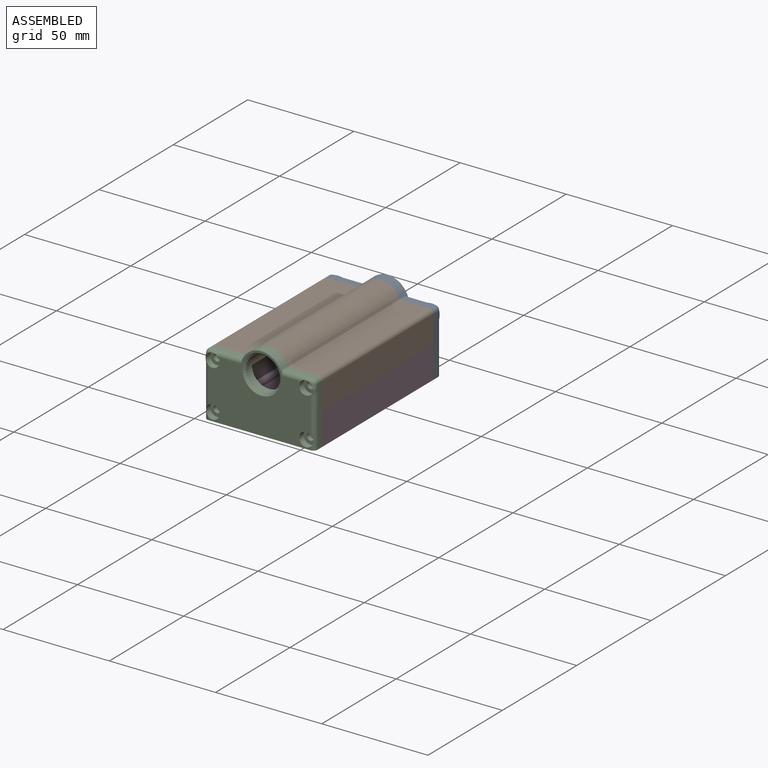
[diagram: assembled view]
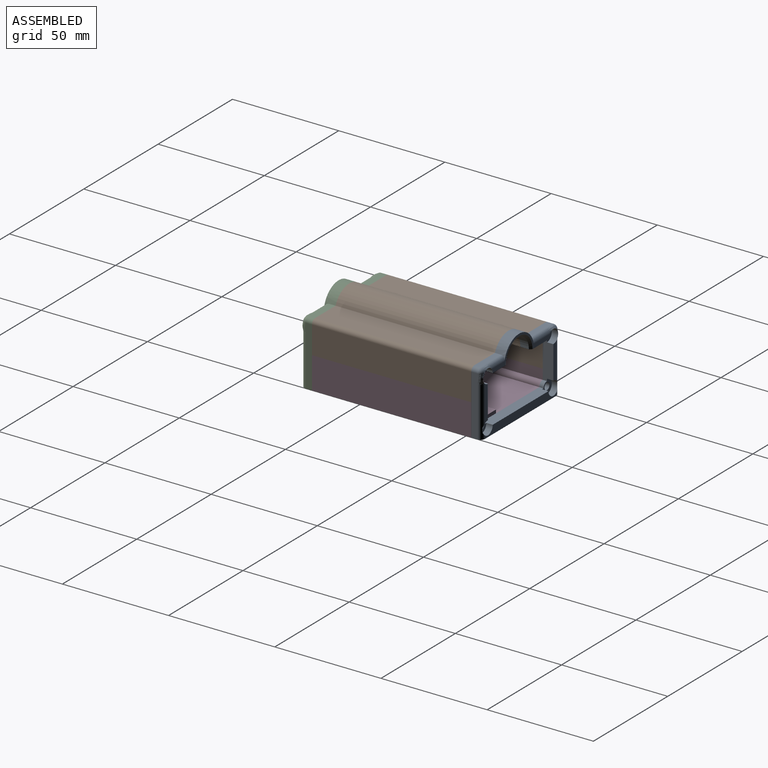
[diagram: assembled view, second angle]
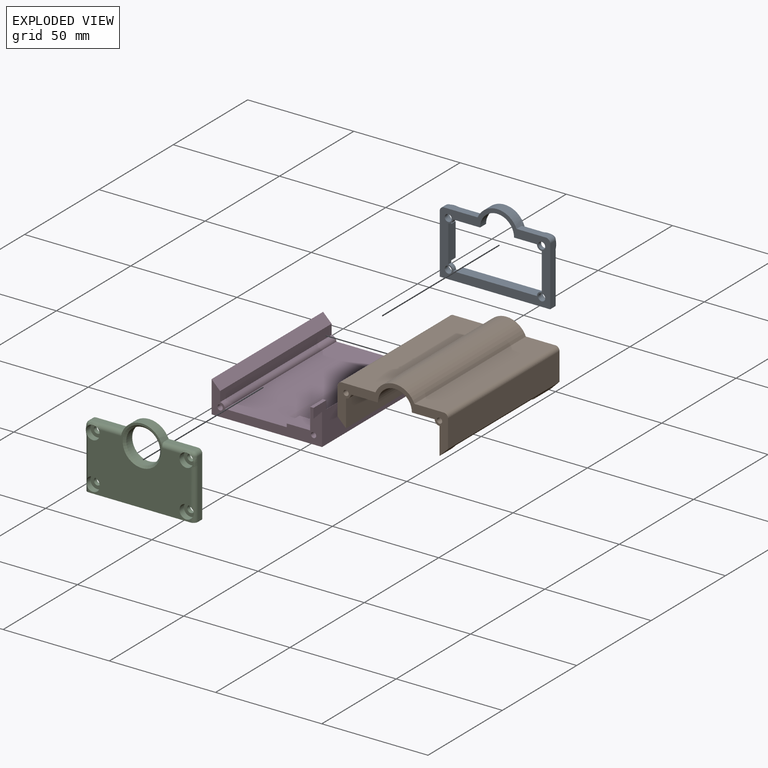
[diagram: exploded view]
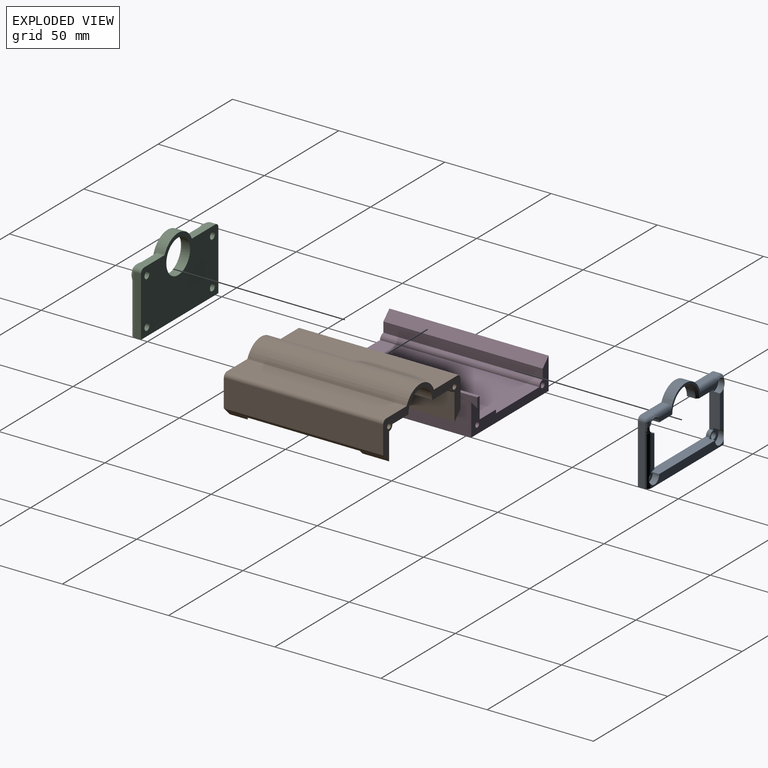
[diagram: exploded view, second angle]
ASSEMBLY  parts=4 mates=4
PART A: 46 faces, bbox 52x5.1x36 mm
  f0: plane 48x4mm, normal (0,1,0), area 163.3mm2, adj f3,f18,f30,f34,f39,f42
  f1: plane 16.88x2mm, normal (0,1,0), area 31.9mm2, adj f4,f24,f34,f42
  f2: plane 16.88x2mm, normal (0,1,0), area 31.9mm2, adj f6,f27,f30,f39
  f3: plane 39.5x5mm, normal (0,0,1), area 191.5mm2, adj f0,f5,f7,f22,f29,f30,f33,f34
  f4: plane 17.5x5mm, normal (-1,0,0), area 81.5mm2, adj f1,f5,f11,f22,f23,f24,f33,f34
  f5: cylinder r=2.25mm len=2.25mm, axis (0,-1,0), area 7.1mm2, adj f3,f4,f22,f33
  f6: plane 17.5x5mm, normal (1,0,0), area 81.5mm2, adj f2,f7,f8,f22,f26,f27,f29,f30
  f7: cylinder r=2.25mm len=2.25mm, axis (0,-1,0), area 7.1mm2, adj f3,f6,f22,f29
  f8: cylinder r=2.25mm len=2.25mm, axis (0,-1,0), area 7.1mm2, adj f6,f9,f22,f26
  f9: plane 12.75x5mm, normal (0,0,-1), area 60.2mm2, adj f8,f12,f21,f22,f26,f27,f35
  f10: plane 10.75x5mm, normal (0,0,-1), area 50.2mm2, adj f11,f12,f21,f22,f23,f24,f35
  f11: cylinder r=2.25mm len=2.25mm, axis (0,-1,0), area 7.1mm2, adj f4,f10,f22,f23
  f12: cylinder r=8mm len=16mm, axis (0,-1,0), area 100.5mm2, adj f9,f10,f22,f35
  f13: plane 13.84x3.44mm, normal (0,0,1), area 42.6mm2, adj f14,f20,f22,f41,f43
  f14: cylinder r=10mm len=19.6mm, axis (0,-1,0), area 117.8mm2, adj f13,f15,f21,f22,f36,f41
  f15: plane 15.84x3.44mm, normal (0,0,1), area 48.6mm2, adj f14,f16,f22,f36,f37
  f16: cylinder r=2mm len=3.05mm, axis (0,-1,0), area 9.6mm2, adj f15,f17,f22,f38
  f17: plane 28x3.44mm, normal (-1,0,0), area 85.1mm2, adj f16,f18,f22,f39,f40
  f18: plane 52x5mm, normal (0,0,-1), area 258.3mm2, adj f0,f17,f19,f22,f39,f42
  f19: plane 28x3.44mm, normal (1,0,0), area 85.1mm2, adj f18,f20,f22,f42,f44
  f20: cylinder r=2mm len=3.05mm, axis (0,-1,0), area 9.6mm2, adj f13,f19,f22,f45
  f21: plane 38.88x10mm, normal (0,1,0), area 66mm2, adj f9,f10,f14,f24,f27,f35,f36,f41
  f22: plane 52x36mm, normal (0,-1,0), area 550.7mm2, adj f3,f4,f5,f6,f7,f8,f9,f10
  f23: plane 6.5x6.5mm, normal (0,1,0), area 20.3mm2, adj f4,f10,f11,f24,f25
  f24: cylinder r=3.25mm len=6.5mm, axis (0,1,0), area 45.9mm2, adj f1,f4,f10,f21,f23,f43,f44
  f25: cylinder r=1.65mm len=3.3mm, axis (0,1,0), area 20.7mm2, adj f22,f23
  f26: plane 6.5x6.5mm, normal (0,1,0), area 20.3mm2, adj f6,f8,f9,f27,f28
  f27: cylinder r=3.25mm len=6.5mm, axis (0,1,0), area 45.9mm2, adj f2,f6,f9,f21,f26,f37,f40
  f28: cylinder r=1.65mm len=3.3mm, axis (0,1,0), area 20.7mm2, adj f22,f26
  f29: plane 6.5x6.5mm, normal (0,1,0), area 20.3mm2, adj f3,f6,f7,f30,f31
  f30: cylinder r=3.25mm len=6.5mm, axis (0,1,0), area 44.6mm2, adj f0,f2,f3,f6,f29,f39
  f31: cylinder r=1.65mm len=3.3mm, axis (0,1,0), area 20.7mm2, adj f22,f29
  f32: cylinder r=1.65mm len=3.3mm, axis (0,1,0), area 20.7mm2, adj f22,f33
  f33: plane 6.5x6.5mm, normal (0,1,0), area 20.3mm2, adj f3,f4,f5,f32,f34
  f34: cylinder r=3.25mm len=6.5mm, axis (0,1,0), area 44.6mm2, adj f0,f1,f3,f4,f33,f42
  f35: cone r=9mm half-angle=45deg, axis (0,1,0), area 37.8mm2, adj f9,f10,f12,f21
  f36: cylinder r=2mm len=11.27mm, axis (1,0,0), area 34.4mm2, adj f14,f15,f21,f37
  f37: bspline ~5.19x2.14mm, area 10.5mm2, adj f15,f27,f36,f38
  f38: sphere r=2mm, area 5.4mm2, adj f16,f37,f40
  f39: cylinder r=2mm len=23.44mm, axis (0,0,1), area 68.9mm2, adj f0,f2,f17,f18,f30,f40
  f40: bspline ~5.2x2.08mm, area 10.5mm2, adj f17,f27,f38,f39
  f41: cylinder r=2mm len=9.27mm, axis (1,0,0), area 28.1mm2, adj f13,f14,f21,f43
  f42: cylinder r=2mm len=23.44mm, axis (0,0,-1), area 68.9mm2, adj f0,f1,f18,f19,f34,f44
  f43: bspline ~5.2x2.08mm, area 10.5mm2, adj f13,f24,f41,f45
  f44: bspline ~5.19x2.14mm, area 10.5mm2, adj f19,f24,f42,f45
  f45: sphere r=2mm, area 5.4mm2, adj f20,f43,f44
PART B: 26 faces, bbox 52x75x25 mm
  f0: cylinder r=8mm len=75mm, axis (0,1,0), area 1815.5mm2, adj f1,f4,f16,f17,f23,f24,f25
  f1: plane 75x10.75mm, normal (0,0,-1), area 360.7mm2, adj f0,f5,f16,f17,f23,f24,f25
  f2: plane 75x12.75mm, normal (-1,0,0), area 383.5mm2, adj f3,f5,f16,f17,f20,f21,f22
  f3: plane 75x4mm, normal (0.71,0,-0.71), area 282.3mm2, adj f2,f6,f16,f17,f20,f21,f22
  f4: plane 75x12.75mm, normal (0,0,-1), area 956.2mm2, adj f0,f15,f16,f17
  f5: cylinder r=2.25mm len=75mm, axis (0,1,0), area 265.1mm2, adj f1,f2,f16,f17
  f6: plane 75x13mm, normal (1,0,0), area 975mm2, adj f3,f7,f16,f17
  f7: cylinder r=2mm len=75mm, axis (0,1,0), area 235.6mm2, adj f6,f8,f16,f17
  f8: plane 75x13.84mm, normal (0,0,1), area 1037.6mm2, adj f7,f9,f16,f17
  f9: cylinder r=10mm len=75mm, axis (0,1,0), area 1738.9mm2, adj f8,f10,f16,f17
  f10: plane 75x15.84mm, normal (0,0,1), area 1187.6mm2, adj f9,f11,f16,f17
  f11: cylinder r=2mm len=75mm, axis (0,1,0), area 235.6mm2, adj f10,f12,f16,f17
  f12: plane 75x13mm, normal (-1,0,0), area 975mm2, adj f11,f13,f16,f17
  f13: plane 75x4mm, normal (-0.71,0,-0.71), area 424.3mm2, adj f12,f14,f16,f17
  f14: plane 75x12.75mm, normal (1,0,0), area 956.2mm2, adj f13,f15,f16,f17
  f15: cylinder r=2.25mm len=75mm, axis (0,1,0), area 265.1mm2, adj f4,f14,f16,f17
  f16: plane 52x25mm, normal (0,-1,0), area 287.2mm2, adj f0,f1,f2,f3,f4,f5,f6,f7
  f17: plane 52x25mm, normal (0,1,0), area 287.2mm2, adj f0,f1,f2,f3,f4,f5,f6,f7
  f18: cylinder r=1.25mm len=75mm, axis (0,1,0), area 589mm2, adj f16,f17
  f19: cylinder r=1.25mm len=75mm, axis (0,1,0), area 589mm2, adj f16,f17
  f20: plane 10.61x2mm, normal (0,-1,0), area 14.7mm2, adj f2,f3,f22
  f21: plane 10.61x2mm, normal (0,1,0), area 14.7mm2, adj f2,f3,f22
  f22: cylinder r=12.75mm len=54mm, axis (0,1,0), area 493.4mm2, adj f2,f3,f20,f21
  f23: cylinder r=12.75mm len=54mm, axis (0,1,0), area 465.1mm2, adj f0,f1,f24,f25
  f24: plane 8.35x1.5mm, normal (0,1,0), area 9.3mm2, adj f0,f1,f23
  f25: plane 8.35x1.5mm, normal (0,-1,0), area 9.3mm2, adj f0,f1,f23
PART C: 34 faces, bbox 52x5.1x36 mm
  f0: plane 28x3.44mm, normal (-1,0,0), area 85.1mm2, adj f1,f7,f10,f30,f32
  f1: plane 52x5mm, normal (0,0,-1), area 258.3mm2, adj f0,f2,f9,f10,f27,f30
  f2: plane 28x3.44mm, normal (1,0,0), area 85.1mm2, adj f1,f3,f10,f27,f28
  f3: cylinder r=2mm len=3.05mm, axis (0,1,0), area 9.6mm2, adj f2,f4,f10,f26
  f4: plane 13.84x3.44mm, normal (0,0,1), area 42.6mm2, adj f3,f5,f10,f24,f25
  f5: cylinder r=10mm len=19.6mm, axis (0,1,0), area 117.8mm2, adj f4,f6,f9,f10,f24,f29
  f6: plane 15.84x3.44mm, normal (0,0,1), area 48.6mm2, adj f5,f7,f10,f29,f31
  f7: cylinder r=2mm len=3.05mm, axis (0,1,0), area 9.6mm2, adj f0,f6,f10,f33
  f8: cylinder r=8mm len=16mm, axis (0,1,0), area 201.1mm2, adj f10,f23
  f9: plane 48x36mm, normal (0,-1,0), area 1100.6mm2, adj f1,f5,f13,f16,f19,f22,f23,f24
  f10: plane 52x36mm, normal (0,1,0), area 1402.3mm2, adj f0,f1,f2,f3,f4,f5,f6,f7
  f11: cylinder r=1.65mm len=3.3mm, axis (0,-1,0), area 20.7mm2, adj f10,f12
  f12: plane 6.5x6.5mm, normal (0,-1,0), area 24.6mm2, adj f11,f13
  f13: cylinder r=3.25mm len=6.5mm, axis (0,-1,0), area 61.3mm2, adj f9,f12,f31,f32
  f14: cylinder r=1.65mm len=3.3mm, axis (0,-1,0), area 20.7mm2, adj f10,f15
  f15: plane 6.5x6.5mm, normal (0,-1,0), area 24.6mm2, adj f14,f16
  f16: cylinder r=3.25mm len=6.5mm, axis (0,-1,0), area 59.9mm2, adj f9,f15,f30
  f17: cylinder r=1.65mm len=3.3mm, axis (0,-1,0), area 20.7mm2, adj f10,f18
  f18: plane 6.5x6.5mm, normal (0,-1,0), area 24.6mm2, adj f17,f19
  f19: cylinder r=3.25mm len=6.5mm, axis (0,-1,0), area 61.3mm2, adj f9,f18,f25,f28
  f20: cylinder r=1.65mm len=3.3mm, axis (0,-1,0), area 20.7mm2, adj f10,f21
  f21: plane 6.5x6.5mm, normal (0,-1,0), area 24.6mm2, adj f20,f22
  f22: cylinder r=3.25mm len=6.5mm, axis (0,-1,0), area 59.9mm2, adj f9,f21,f27
  f23: cone r=8mm half-angle=45deg, axis (0,-1,0), area 75.5mm2, adj f8,f9
  f24: cylinder r=2mm len=9.27mm, axis (1,0,0), area 28.1mm2, adj f4,f5,f9,f25
  f25: bspline ~5.19x2.14mm, area 10.5mm2, adj f4,f19,f24,f26
  f26: sphere r=2mm, area 5.2mm2, adj f3,f25,f28
  f27: cylinder r=2mm len=23.44mm, axis (0,0,-1), area 68.9mm2, adj f1,f2,f9,f22,f28
  f28: bspline ~5.2x2.08mm, area 10.5mm2, adj f2,f19,f26,f27
  f29: cylinder r=2mm len=11.27mm, axis (1,0,0), area 34.4mm2, adj f5,f6,f9,f31
  f30: cylinder r=2mm len=23.44mm, axis (0,0,1), area 68.9mm2, adj f0,f1,f9,f16,f32
  f31: bspline ~5.2x2.08mm, area 10.5mm2, adj f6,f13,f29,f33
  f32: bspline ~5.19x2.14mm, area 10.5mm2, adj f0,f13,f30,f33
  f33: sphere r=2mm, area 5.2mm2, adj f7,f31,f32
PART D: 26 faces, bbox 52x75x15.6 mm
  f0: plane 75x4mm, normal (-0.71,0,0.71), area 282.3mm2, adj f1,f7,f15,f16,f17,f23,f24,f25
  f1: plane 8.5x4.59mm, normal (1,0,0), area 39mm2, adj f0,f2,f16,f24
  f2: plane 8.5x1.59mm, normal (0,0,1), area 13.5mm2, adj f1,f3,f16,f24
  f3: plane 75x10mm, normal (-1,0,0), area 225.6mm2, adj f2,f4,f8,f16,f17,f23,f24,f25
  f4: plane 75x11mm, normal (0,0,1), area 246.6mm2, adj f3,f5,f9,f16,f17,f20,f21,f22
  f5: plane 8.5x1.59mm, normal (-1,0,0), area 13.5mm2, adj f4,f6,f16,f21
  f6: plane 75x29.16mm, normal (0,0,1), area 1916.1mm2, adj f5,f9,f10,f16,f17,f20,f21,f22
  f7: plane 12.5x4.59mm, normal (1,0,0), area 57.4mm2, adj f0,f8,f17,f25
  f8: plane 12.5x1.59mm, normal (0,0,1), area 19.9mm2, adj f3,f7,f17,f25
  f9: plane 12.5x1.59mm, normal (-1,0,0), area 19.9mm2, adj f4,f6,f17,f20
  f10: cylinder r=2.25mm len=75mm, axis (0,1,0), area 265.1mm2, adj f6,f11,f16,f17
  f11: plane 75x4.75mm, normal (1,0,0), area 356.3mm2, adj f10,f12,f16,f17
  f12: plane 75x4mm, normal (0.71,0,0.71), area 424.3mm2, adj f11,f13,f16,f17
  f13: plane 75x15mm, normal (-1,0,0), area 1125mm2, adj f12,f14,f16,f17
  f14: plane 75x52mm, normal (0,0,-1), area 3900mm2, adj f13,f15,f16,f17
  f15: plane 75x15mm, normal (1,0,0), area 1125mm2, adj f0,f14,f16,f17
  f16: plane 52x15.59mm, normal (0,-1,0), area 310.1mm2, adj f0,f1,f2,f3,f4,f5,f6,f10
  f17: plane 52x15.59mm, normal (0,1,0), area 310.1mm2, adj f0,f3,f4,f6,f7,f8,f9,f10
  f18: cylinder r=1.25mm len=75mm, axis (0,1,0), area 589mm2, adj f16,f17
  f19: cylinder r=1.25mm len=75mm, axis (0,1,0), area 589mm2, adj f16,f17
  f20: plane 15.73x3.59mm, normal (0,-1,0), area 34.1mm2, adj f4,f6,f9,f22
  f21: plane 15.73x3.59mm, normal (0,1,0), area 34.1mm2, adj f4,f5,f6,f22
  f22: cylinder r=12.75mm len=54mm, axis (0,1,0), area 920.6mm2, adj f4,f6,f20,f21
  f23: cylinder r=12.75mm len=54mm, axis (0,1,0), area 427.2mm2, adj f0,f3,f24,f25
  f24: plane 9.71x3.45mm, normal (0,1,0), area 17.8mm2, adj f0,f1,f2,f3,f23
  f25: plane 9.71x3.45mm, normal (0,-1,0), area 17.8mm2, adj f0,f3,f7,f8,f23
PLACE A t=(41.34,14.64,7.21)mm
PLACE B t=(41.34,14.64,7.21)mm
PLACE C t=(41.34,14.64,7.21)mm
PLACE D t=(41.34,14.64,7.21)mm
MATE fastened C.f11 <-> B.f15  axis (0,1,0) through (19.34,-60.36,18.21)mm
MATE fastened D.f10 <-> A.f7  axis (0,1,0) through (19.34,14.64,-3.79)mm
MATE fastened B.f5 <-> A.f11  axis (0,1,0) through (63.34,14.64,18.21)mm
MATE planar B.f3 <-> D.f0  axis (0.71,0,-0.71) through (65.88,-21.85,5.75)mm
